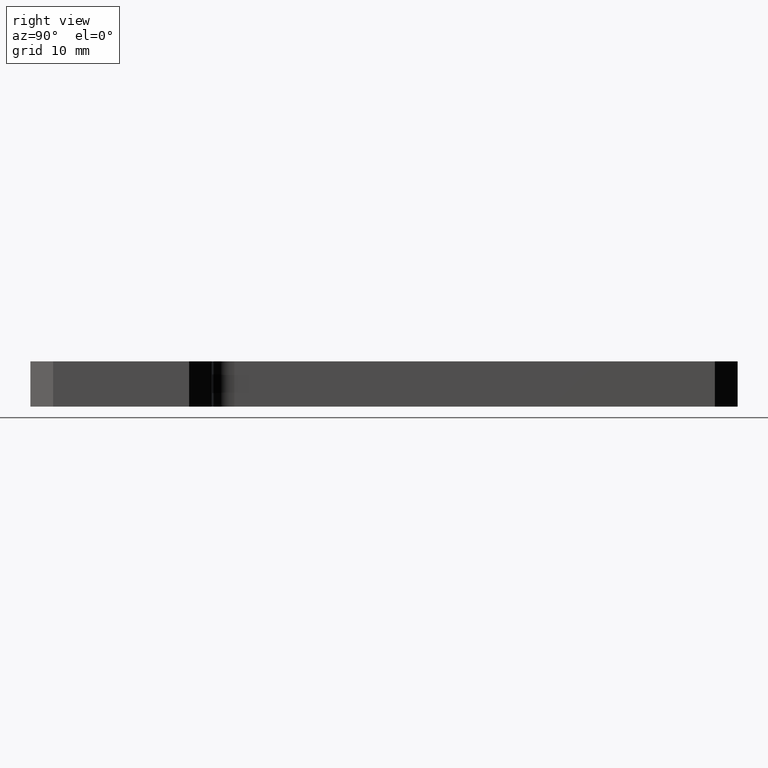
[diagram: clean part render]
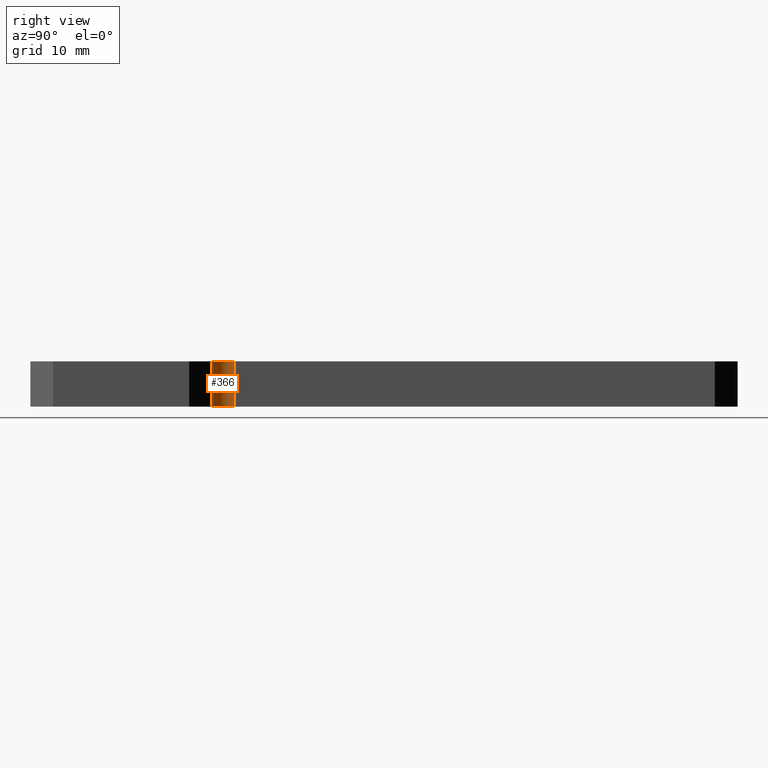
[diagram: same view with one face highlighted and labeled with its STEP entity id]
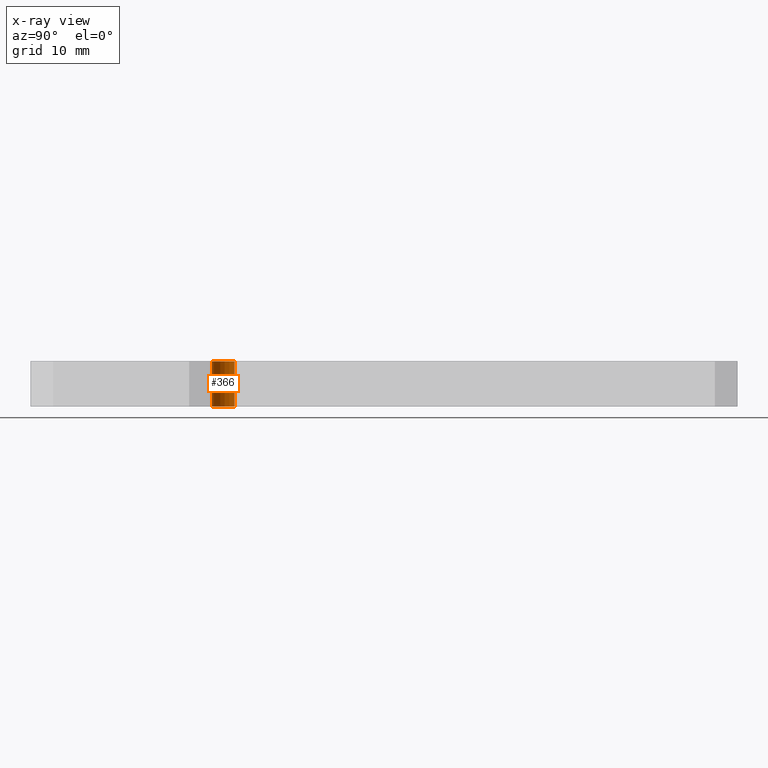
[diagram: x-ray of the same camera — body ghosted, the highlighted face saturated]
A machine part, right view. The second image highlights one B-rep face of the part: STEP entity #366.
The next image is the same camera in x-ray: the body ghosted, the highlighted face saturated — about 0% of this face is hidden behind the body in this view.
In plain terms, the highlighted cylindrical surface (edge-blend (fillet) strip) has radius 3.175 mm, axis along (0, 0, -1).
Its self-contained STEP definition (entity closure, byte-faithful):
#3 = CIRCLE ( 'NONE', #965, 0.1250000000000000300 ) ;
#61 = LINE ( 'NONE', #243, #64 ) ;
#63 = LINE ( 'NONE', #236, #72 ) ;
#64 = VECTOR ( 'NONE', #245, 39.37007874015748100 ) ;
#72 = VECTOR ( 'NONE', #252, 39.37007874015748100 ) ;
#118 = CIRCLE ( 'NONE', #976, 0.1250000000000000300 ) ;
#175 = CARTESIAN_POINT ( 'NONE',  ( 0.7250000000000002000, 1.125000000000000000, 0.0000000000000000000 ) ) ;
#176 = DIRECTION ( 'NONE',  ( -0.0000000000000000000, -0.0000000000000000000, -1.000000000000000000 ) ) ;
#177 = DIRECTION ( 'NONE',  ( -1.000000000000000000, 0.0000000000000000000, 0.0000000000000000000 ) ) ;
#236 = CARTESIAN_POINT ( 'NONE',  ( 0.7250000000000002000, 1.000000000000000000, 0.0000000000000000000 ) ) ;
#243 = CARTESIAN_POINT ( 'NONE',  ( 0.6000000000000003100, 1.125000000000000000, -0.2500000000000000000 ) ) ;
#245 = DIRECTION ( 'NONE',  ( -0.0000000000000000000, -0.0000000000000000000, -1.000000000000000000 ) ) ;
#252 = DIRECTION ( 'NONE',  ( 0.0000000000000000000, 0.0000000000000000000, 1.000000000000000000 ) ) ;
#313 = CARTESIAN_POINT ( 'NONE',  ( 0.7250000000000002000, 1.125000000000000000, -0.2500000000000000000 ) ) ;
#314 = DIRECTION ( 'NONE',  ( 0.0000000000000000000, 0.0000000000000000000, 1.000000000000000000 ) ) ;
#315 = DIRECTION ( 'NONE',  ( -1.000000000000000000, 0.0000000000000000000, 0.0000000000000000000 ) ) ;
#366 = ADVANCED_FACE ( 'NONE', ( #838 ), #846, .F. ) ;
#455 = ORIENTED_EDGE ( 'NONE', *, *, #947, .F. ) ;
#456 = ORIENTED_EDGE ( 'NONE', *, *, #915, .F. ) ;
#457 = ORIENTED_EDGE ( 'NONE', *, *, #863, .F. ) ;
#458 = ORIENTED_EDGE ( 'NONE', *, *, #919, .F. ) ;
#490 = EDGE_LOOP ( 'NONE', ( #455, #456, #457, #458 ) ) ;
#579 = VERTEX_POINT ( 'NONE', #721 ) ;
#584 = VERTEX_POINT ( 'NONE', #726 ) ;
#585 = VERTEX_POINT ( 'NONE', #727 ) ;
#589 = VERTEX_POINT ( 'NONE', #731 ) ;
#687 = DIRECTION ( 'NONE',  ( -1.000000000000000000, 0.0000000000000000000, 0.0000000000000000000 ) ) ;
#694 = DIRECTION ( 'NONE',  ( 0.0000000000000000000, 0.0000000000000000000, -1.000000000000000000 ) ) ;
#695 = CARTESIAN_POINT ( 'NONE',  ( 0.7250000000000002000, 1.125000000000000000, -0.2500000000000000000 ) ) ;
#721 = CARTESIAN_POINT ( 'NONE',  ( 0.6000000000000003100, 1.125000000000000200, 0.0000000000000000000 ) ) ;
#726 = CARTESIAN_POINT ( 'NONE',  ( 0.7250000000000002000, 1.000000000000000000, -0.2500000000000000000 ) ) ;
#727 = CARTESIAN_POINT ( 'NONE',  ( 0.6000000000000003100, 1.125000000000000200, -0.2500000000000000000 ) ) ;
#731 = CARTESIAN_POINT ( 'NONE',  ( 0.7250000000000002000, 1.000000000000000000, 0.0000000000000000000 ) ) ;
#838 = FACE_OUTER_BOUND ( 'NONE', #490, .T. ) ;
#846 = CYLINDRICAL_SURFACE ( 'NONE', #956, 0.1250000000000000300 ) ;
#863 = EDGE_CURVE ( 'NONE', #589, #579, #3, .T. ) ;
#915 = EDGE_CURVE ( 'NONE', #579, #585, #61, .T. ) ;
#919 = EDGE_CURVE ( 'NONE', #584, #589, #63, .T. ) ;
#947 = EDGE_CURVE ( 'NONE', #585, #584, #118, .T. ) ;
#956 = AXIS2_PLACEMENT_3D ( 'NONE', #695, #694, #687 ) ;
#965 = AXIS2_PLACEMENT_3D ( 'NONE', #175, #176, #177 ) ;
#976 = AXIS2_PLACEMENT_3D ( 'NONE', #313, #314, #315 ) ;